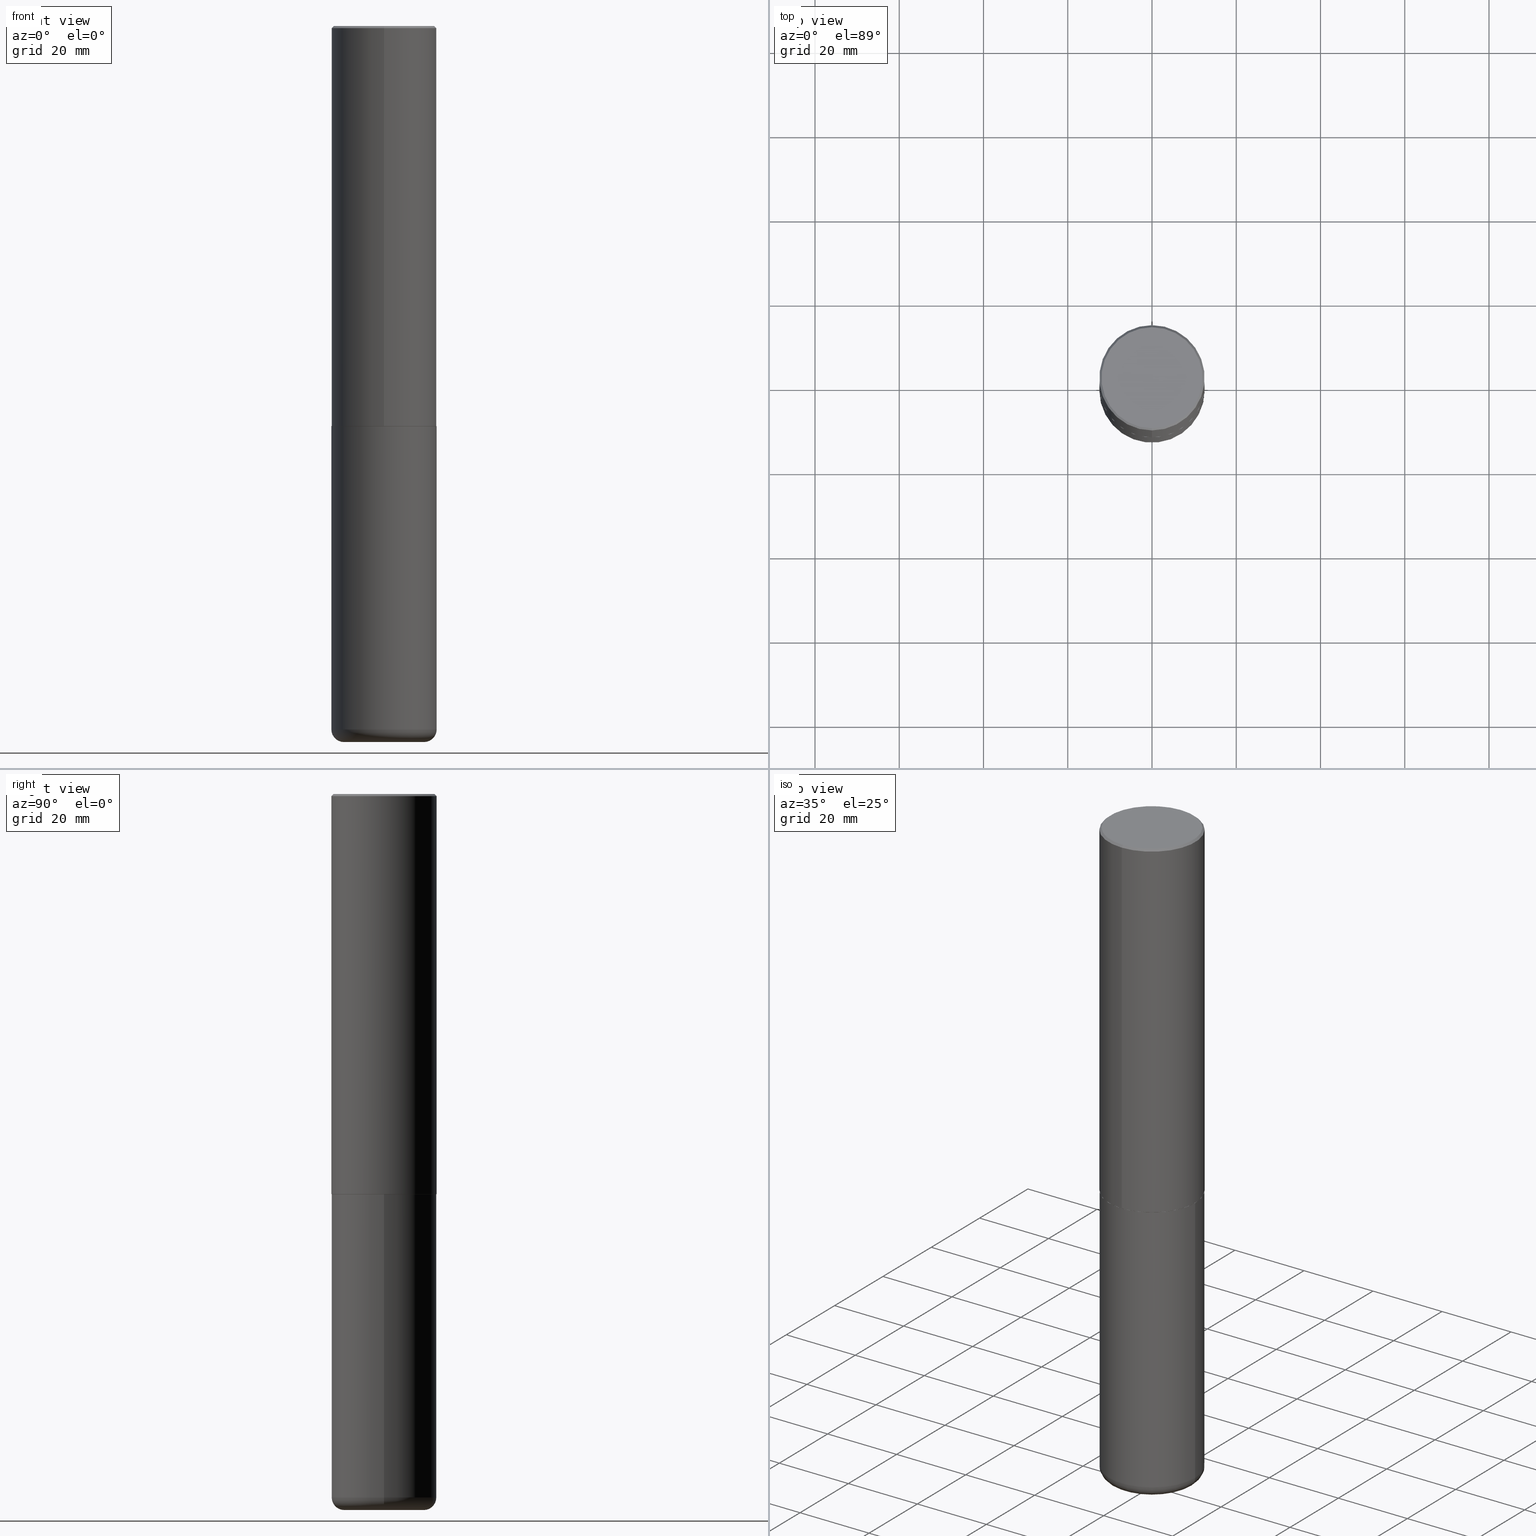
[diagram: canonical four-view strip — front | top / right | iso, engineering-drawing reading convention]
A machine part, canonical four-view strip (front | top / right | iso — engineering-drawing reading convention). The complete STEP part file that produces these views, byte-faithful:
ISO-10303-21;
HEADER;
FILE_DESCRIPTION (( 'STEP AP203' ),
    '1' );
FILE_NAME ('47626.STEP',
    '2024-03-06T19:43:30',
    ( '' ),
    ( '' ),
    'SwSTEP 2.0',
    'SolidWorks 2023',
    '' );
FILE_SCHEMA (( 'CONFIG_CONTROL_DESIGN' ));
ENDSEC;

DATA;
#1 = DIRECTION ( 'NONE',  ( -6.982962677686265922E-15, -1.000000000000000000, 3.490754157143982946E-15 ) ) ;
#2 = DIRECTION ( 'NONE',  ( -2.445976594451651952E-29, 3.490754157143982552E-15, 1.000000000000000000 ) ) ;
#3 = PRODUCT_DEFINITION_FORMATION_WITH_SPECIFIED_SOURCE ( 'ANY', '', #280, .NOT_KNOWN. ) ;
#4 = DIRECTION ( 'NONE',  ( 2.445976594451651392E-29, -3.490754157143982552E-15, -1.000000000000000000 ) ) ;
#5 = ORIENTED_EDGE ( 'NONE', *, *, #337, .T. ) ;
#6 = ADVANCED_FACE ( 'NONE', ( #199 ), #52, .T. ) ;
#7 = DIRECTION ( 'NONE',  ( -2.445468806185136597E-29, 3.491481338843145583E-15, 1.000000000000000000 ) ) ;
#8 = VECTOR ( 'NONE', #300, 39.37007874015748143 ) ;
#9 = VERTEX_POINT ( 'NONE', #45 ) ;
#10 = ORIENTED_EDGE ( 'NONE', *, *, #383, .T. ) ;
#11 = LINE ( 'NONE', #326, #8 ) ;
#12 = VERTEX_POINT ( 'NONE', #20 ) ;
#13 = AXIS2_PLACEMENT_3D ( 'NONE', #342, #186, #48 ) ;
#14 = FACE_OUTER_BOUND ( 'NONE', #245, .T. ) ;
#15 = EDGE_CURVE ( 'NONE', #41, #369, #289, .T. ) ;
#16 = ORIENTED_EDGE ( 'NONE', *, *, #142, .T. ) ;
#17 = DIRECTION ( 'NONE',  ( -2.445976594451651952E-29, 3.490754157143982552E-15, 1.000000000000000000 ) ) ;
#18 = ORIENTED_EDGE ( 'NONE', *, *, #411, .F. ) ;
#19 = PERSON_AND_ORGANIZATION_ROLE ( 'creator' ) ;
#20 = CARTESIAN_POINT ( 'NONE',  ( -0.4921499999999999764, -1.945885543258258157E-14, -6.574799999999999756 ) ) ;
#21 = LOCAL_TIME ( 14, 43, 30.00000000000000000, #206 ) ;
#22 = PERSON_AND_ORGANIZATION ( #110, #373 ) ;
#23 = CYLINDRICAL_SURFACE ( 'NONE', #234, 0.4921499999999999764 ) ;
#24 = ADVANCED_FACE ( 'NONE', ( #176 ), #23, .T. ) ;
#25 = CARTESIAN_POINT ( 'NONE',  ( -0.4921499999999999764, -1.451020435697325173E-14, -3.740100000000000424 ) ) ;
#26 = APPROVAL_STATUS ( 'not_yet_approved' ) ;
#27 = DIRECTION ( 'NONE',  ( -2.445976594451651952E-29, 3.490754157143982552E-15, 1.000000000000000000 ) ) ;
#28 = TOROIDAL_SURFACE ( 'NONE', #75, 0.3740499999999999381, 0.1181000000000000660 ) ;
#29 = CC_DESIGN_APPROVAL ( #116, ( #3 ) ) ;
#30 = EDGE_CURVE ( 'NONE', #40, #282, #46, .T. ) ;
#31 = CARTESIAN_POINT ( 'NONE',  ( -5.420756467185317189E-45, 7.736185299407739239E-31, 2.216193106459615290E-16 ) ) ;
#32 = CARTESIAN_POINT ( 'NONE',  ( -3.429682119145517860E-15, -0.4911500000000130206, -3.740099999999998204 ) ) ;
#33 = CARTESIAN_POINT ( 'NONE',  ( 4.891953188903329688E-31, -6.981508314288001687E-17, -0.02000000000000010797 ) ) ;
#34 = CARTESIAN_POINT ( 'NONE',  ( 9.148197060908621523E-29, -1.305576962313420868E-14, -3.740099999999999980 ) ) ;
#35 = AXIS2_PLACEMENT_3D ( 'NONE', #228, #7, #361 ) ;
#36 = ADVANCED_FACE ( 'NONE', ( #151 ), #28, .T. ) ;
#37 = CARTESIAN_POINT ( 'NONE',  ( 4.891953188903329688E-31, -6.981508314288001687E-17, -0.02000000000000010797 ) ) ;
#38 = CALENDAR_DATE ( 2024, 6, 3 ) ;
#39 = ADVANCED_FACE ( 'NONE', ( #382 ), #152, .T. ) ;
#40 = VERTEX_POINT ( 'NONE', #251 ) ;
#41 = VERTEX_POINT ( 'NONE', #25 ) ;
#42 = DIRECTION ( 'NONE',  ( -6.982962677686265922E-15, -1.000000000000000000, 3.330506545156063496E-15 ) ) ;
#43 = EDGE_LOOP ( 'NONE', ( #375, #163 ) ) ;
#44 = CARTESIAN_POINT ( 'NONE',  ( 1.607846830690603466E-28, -2.295579150662591525E-14, -6.574799999999999756 ) ) ;
#45 = CARTESIAN_POINT ( 'NONE',  ( 3.436665081823295777E-15, 0.4921499999999998098, -0.02000000000000182188 ) ) ;
#46 = CIRCLE ( 'NONE', #305, 0.3740499999999999381 ) ;
#47 = APPROVAL_PERSON_ORGANIZATION ( #249, #285, #376 ) ;
#48 = DIRECTION ( 'NONE',  ( -1.000000000000000000, 6.982962677686265922E-15, -4.876176775795935793E-29 ) ) ;
#49 = PERSON_AND_ORGANIZATION_ROLE ( 'classification_officer' ) ;
#50 = ORIENTED_EDGE ( 'NONE', *, *, #301, .T. ) ;
#51 = DATE_TIME_ROLE ( 'creation_date' ) ;
#52 = CYLINDRICAL_SURFACE ( 'NONE', #84, 0.4921500000000000874 ) ;
#53 = EDGE_CURVE ( 'NONE', #263, #99, #257, .T. ) ;
#54 = CARTESIAN_POINT ( 'NONE',  ( 0.000000000000000000, 0.000000000000000000, 0.000000000000000000 ) ) ;
#55 = SECURITY_CLASSIFICATION ( '', '', #117 ) ;
#56 = CALENDAR_DATE ( 2024, 6, 3 ) ;
#57 = CARTESIAN_POINT ( 'NONE',  ( 3.496936074043333291E-15, 0.4921500000000000874, -1.717974658438411319E-15 ) ) ;
#58 = CALENDAR_DATE ( 2024, 6, 3 ) ;
#59 = CARTESIAN_POINT ( 'NONE',  ( 0.4921499999999999764, -3.436665081823295777E-15, 2.399810400207969603E-29 ) ) ;
#60 = FACE_OUTER_BOUND ( 'NONE', #43, .T. ) ;
#61 = AXIS2_PLACEMENT_3D ( 'NONE', #330, #157, #42 ) ;
#62 = CARTESIAN_POINT ( 'NONE',  ( 1.636727817291649966E-28, -2.336813545274328780E-14, -6.692899999999999849 ) ) ;
#63 = CARTESIAN_POINT ( 'NONE',  ( 1.607846830690603466E-28, -2.295579150662591525E-14, -6.574799999999999756 ) ) ;
#64 = EDGE_LOOP ( 'NONE', ( #5, #362, #77, #302 ) ) ;
#65 = DIRECTION ( 'NONE',  ( 2.445976594451651952E-29, -3.490754157143982552E-15, -1.000000000000000000 ) ) ;
#66 = CIRCLE ( 'NONE', #391, 0.4721499999999996255 ) ;
#67 = CARTESIAN_POINT ( 'NONE',  ( 3.493383360364624690E-15, 0.4911499999999869304, -3.740100000000001312 ) ) ;
#68 = CIRCLE ( 'NONE', #161, 0.3740499999999999381 ) ;
#69 = VERTEX_POINT ( 'NONE', #182 ) ;
#70 = DIRECTION ( 'NONE',  ( -2.445468806185136597E-29, 3.491481338843145583E-15, 1.000000000000000000 ) ) ;
#71 = ORIENTED_EDGE ( 'NONE', *, *, #195, .T. ) ;
#72 = ADVANCED_FACE ( 'NONE', ( #384 ), #252, .T. ) ;
#73 = ORIENTED_EDGE ( 'NONE', *, *, #268, .T. ) ;
#74 = DIRECTION ( 'NONE',  ( 1.000000000000000000, 0.000000000000000000, 0.000000000000000000 ) ) ;
#75 = AXIS2_PLACEMENT_3D ( 'NONE', #63, #218, #179 ) ;
#76 = APPLICATION_PROTOCOL_DEFINITION ( 'international standard', 'config_control_design', 1994, #164 ) ;
#77 = ORIENTED_EDGE ( 'NONE', *, *, #371, .F. ) ;
#78 = DIRECTION ( 'NONE',  ( 1.000000000000000000, -6.982962677686266711E-15, 4.883557194083112340E-29 ) ) ;
#79 = DIRECTION ( 'NONE',  ( -2.445468806185136597E-29, 3.491481338843145583E-15, 1.000000000000000000 ) ) ;
#80 = ORIENTED_EDGE ( 'NONE', *, *, #30, .T. ) ;
#81 = ADVANCED_FACE ( 'NONE', ( #381 ), #119, .T. ) ;
#82 = CARTESIAN_POINT ( 'NONE',  ( -0.4921499999999999764, 3.496936074043332897E-15, -2.420853904668951509E-29 ) ) ;
#83 = EDGE_LOOP ( 'NONE', ( #18, #80, #16, #158 ) ) ;
#84 = AXIS2_PLACEMENT_3D ( 'NONE', #54, #247, #312 ) ;
#85 = APPROVAL_PERSON_ORGANIZATION ( #275, #254, #241 ) ;
#86 = ORIENTED_EDGE ( 'NONE', *, *, #261, .T. ) ;
#87 = EDGE_CURVE ( 'NONE', #167, #369, #380, .T. ) ;
#88 = CALENDAR_DATE ( 2024, 6, 3 ) ;
#89 = CIRCLE ( 'NONE', #354, 0.4921500000000000319 ) ;
#90 = DIRECTION ( 'NONE',  ( -4.851104656540955597E-15, -0.7071067811865487940, -0.7071067811865461294 ) ) ;
#91 = ADVANCED_FACE ( 'NONE', ( #92 ), #212, .F. ) ;
#92 = FACE_OUTER_BOUND ( 'NONE', #359, .T. ) ;
#93 = CARTESIAN_POINT ( 'NONE',  ( 3.366835455046432084E-15, 0.4721499999999996255, -1.426540264649568516E-15 ) ) ;
#94 = DIRECTION ( 'NONE',  ( 6.982962677686265922E-15, 1.000000000000000000, -3.486624039460257331E-15 ) ) ;
#95 = DIRECTION ( 'NONE',  ( 1.000000000000000000, -6.982962677686265133E-15, 0.000000000000000000 ) ) ;
#96 = DIRECTION ( 'NONE',  ( -6.982962677686265922E-15, -1.000000000000000000, 3.337287582609300506E-15 ) ) ;
#97 = CC_DESIGN_SECURITY_CLASSIFICATION ( #55, ( #3 ) ) ;
#98 = CARTESIAN_POINT ( 'NONE',  ( 4.891953188903329688E-31, -6.981508314288001687E-17, -0.02000000000000010797 ) ) ;
#99 = VERTEX_POINT ( 'NONE', #255 ) ;
#100 = PRODUCT_DEFINITION ( 'UNKNOWN', '', #3, #270 ) ;
#101 = EDGE_LOOP ( 'NONE', ( #316, #207, #174, #279 ) ) ;
#102 = LENGTH_MEASURE_WITH_UNIT ( LENGTH_MEASURE( 0.02539999999999999897 ), #198 );
#103 = CARTESIAN_POINT ( 'NONE',  ( 9.148197060908621523E-29, -1.305576962313420868E-14, -3.740099999999999980 ) ) ;
#104 =( NAMED_UNIT ( * ) SI_UNIT ( $, .STERADIAN. ) SOLID_ANGLE_UNIT ( ) );
#105 = ORIENTED_EDGE ( 'NONE', *, *, #210, .F. ) ;
#106 = FACE_OUTER_BOUND ( 'NONE', #393, .T. ) ;
#107 = PRODUCT_RELATED_PRODUCT_CATEGORY ( 'detail', '', ( #280 ) ) ;
#108 = APPROVAL_STATUS ( 'not_yet_approved' ) ;
#109 = ORIENTED_EDGE ( 'NONE', *, *, #15, .F. ) ;
#110 = PERSON ( 'UNSPECIFIED', 'UNSPECIFIED', 'UNSPECIFIED', ('UNSPECIFIED'), ('UNSPECIFIED'), ('UNSPECIFIED') ) ;
#111 = PERSON_AND_ORGANIZATION ( #110, #373 ) ;
#112 = EDGE_LOOP ( 'NONE', ( #162, #400, #239, #304 ) ) ;
#113 = VECTOR ( 'NONE', #398, 39.37007874015748143 ) ;
#114 = ADVANCED_FACE ( 'NONE', ( #181 ), #334, .T. ) ;
#115 = ORIENTED_EDGE ( 'NONE', *, *, #301, .F. ) ;
#116 = APPROVAL ( #278, 'UNSPECIFIED' ) ;
#117 = SECURITY_CLASSIFICATION_LEVEL ( 'unclassified' ) ;
#118 = DIRECTION ( 'NONE',  ( 1.000000000000000000, -6.982962677686265922E-15, 4.876176775795935793E-29 ) ) ;
#119 = CONICAL_SURFACE ( 'NONE', #372, 0.4911499999999999755, 0.7853981633980288146 ) ;
#120 = VECTOR ( 'NONE', #237, 39.37007874015748143 ) ;
#121 = PLANE ( 'NONE',  #187 ) ;
#122 = DIRECTION ( 'NONE',  ( -6.982962677686265922E-15, -1.000000000000000000, 3.490754157143982552E-15 ) ) ;
#123 = DIRECTION ( 'NONE',  ( -2.445976594451651952E-29, 3.490754157143982552E-15, 1.000000000000000000 ) ) ;
#124 = AXIS2_PLACEMENT_3D ( 'NONE', #33, #123, #153 ) ;
#125 = APPLICATION_CONTEXT ( 'configuration controlled 3d designs of mechanical parts and assemblies' ) ;
#126 = CIRCLE ( 'NONE', #61, 0.4921500000000003650 ) ;
#127 = CARTESIAN_POINT ( 'NONE',  ( 0.3740499999999999381, -2.556776869621446119E-14, -6.574799999999999756 ) ) ;
#128 = DIRECTION ( 'NONE',  ( -6.982962677686265922E-15, -1.000000000000000000, 3.490754157143982946E-15 ) ) ;
#129 = VERTEX_POINT ( 'NONE', #93 ) ;
#130 = CARTESIAN_POINT ( 'NONE',  ( 0.3740499999999999381, -2.598011264233183690E-14, -6.692899999999999849 ) ) ;
#131 = VECTOR ( 'NONE', #240, 39.37007874015748143 ) ;
#132 = PERSON_AND_ORGANIZATION ( #110, #373 ) ;
#133 = EDGE_LOOP ( 'NONE', ( #205, #336, #408, #331 ) ) ;
#134 = DIRECTION ( 'NONE',  ( -2.445468806185136597E-29, 3.491481338843145583E-15, 1.000000000000000000 ) ) ;
#135 = DIRECTION ( 'NONE',  ( 1.000000000000000000, -6.982962677686265922E-15, 0.000000000000000000 ) ) ;
#136 = CONICAL_SURFACE ( 'NONE', #379, 0.4921499999999999209, 0.7853981633974467247 ) ;
#137 = DIRECTION ( 'NONE',  ( 1.000000000000000000, -6.982962677686265922E-15, 0.000000000000000000 ) ) ;
#138 = CARTESIAN_POINT ( 'NONE',  ( 3.297005828269567997E-15, 0.4721499999999996255, -1.537349919972549256E-15 ) ) ;
#139 = PERSON_AND_ORGANIZATION ( #110, #373 ) ;
#140 = ORIENTED_EDGE ( 'NONE', *, *, #261, .F. ) ;
#141 = CARTESIAN_POINT ( 'NONE',  ( 0.000000000000000000, 0.000000000000000000, 0.000000000000000000 ) ) ;
#142 = EDGE_CURVE ( 'NONE', #282, #167, #340, .T. ) ;
#143 = CARTESIAN_POINT ( 'NONE',  ( 9.146297882013029477E-29, -1.305848935540725085E-14, -3.740100000000000424 ) ) ;
#144 = AXIS2_PLACEMENT_3D ( 'NONE', #217, #320, #94 ) ;
#145 = CC_DESIGN_DATE_AND_TIME_ASSIGNMENT ( #404, #51, ( #100 ) ) ;
#146 = CARTESIAN_POINT ( 'NONE',  ( 0.000000000000000000, 0.000000000000000000, 0.000000000000000000 ) ) ;
#147 = LINE ( 'NONE', #324, #220 ) ;
#148 = ADVANCED_FACE ( 'NONE', ( #60 ), #121, .T. ) ;
#149 = DIRECTION ( 'NONE',  ( -6.982962677686265922E-15, -1.000000000000000000, 3.337287582609300506E-15 ) ) ;
#150 = AXIS2_PLACEMENT_3D ( 'NONE', #143, #377, #137 ) ;
#151 = FACE_OUTER_BOUND ( 'NONE', #83, .T. ) ;
#152 = CYLINDRICAL_SURFACE ( 'NONE', #177, 0.4921500000000000874 ) ;
#153 = DIRECTION ( 'NONE',  ( -6.982962677686265922E-15, -1.000000000000000000, 3.486624039460257331E-15 ) ) ;
#154 = CIRCLE ( 'NONE', #397, 0.4921499999999999764 ) ;
#155 = DIRECTION ( 'NONE',  ( -2.445976594451651952E-29, 3.490754157143982552E-15, 1.000000000000000000 ) ) ;
#156 = EDGE_CURVE ( 'NONE', #69, #9, #253, .T. ) ;
#157 = DIRECTION ( 'NONE',  ( -2.445976594451651952E-29, 3.490754157143982552E-15, 1.000000000000000000 ) ) ;
#158 = ORIENTED_EDGE ( 'NONE', *, *, #248, .F. ) ;
#159 = APPROVAL_DATE_TIME ( #194, #254 ) ;
#160 = AXIS2_PLACEMENT_3D ( 'NONE', #323, #2, #291 ) ;
#161 = AXIS2_PLACEMENT_3D ( 'NONE', #197, #277, #368 ) ;
#162 = ORIENTED_EDGE ( 'NONE', *, *, #156, .F. ) ;
#163 = ORIENTED_EDGE ( 'NONE', *, *, #30, .F. ) ;
#164 = APPLICATION_CONTEXT ( 'configuration controlled 3d designs of mechanical parts and assemblies' ) ;
#165 = CARTESIAN_POINT ( 'NONE',  ( -3.436665081823296565E-15, -0.4921500000000000874, 1.717974658438411319E-15 ) ) ;
#166 = APPLICATION_PROTOCOL_DEFINITION ( 'international standard', 'config_control_design', 1994, #125 ) ;
#167 = VERTEX_POINT ( 'NONE', #222 ) ;
#168 = CARTESIAN_POINT ( 'NONE',  ( 3.489830646685823002E-15, 0.4911499999999869304, -3.740100000000001312 ) ) ;
#169 = AXIS2_PLACEMENT_3D ( 'NONE', #347, #417, #353 ) ;
#170 = LOCAL_TIME ( 14, 43, 30.00000000000000000, #216 ) ;
#171 = AXIS2_PLACEMENT_3D ( 'NONE', #224, #17, #128 ) ;
#172 = ORIENTED_EDGE ( 'NONE', *, *, #306, .F. ) ;
#173 = LINE ( 'NONE', #82, #113 ) ;
#174 = ORIENTED_EDGE ( 'NONE', *, *, #238, .F. ) ;
#175 = EDGE_LOOP ( 'NONE', ( #396, #345, #115, #325 ) ) ;
#176 = FACE_OUTER_BOUND ( 'NONE', #269, .T. ) ;
#177 = AXIS2_PLACEMENT_3D ( 'NONE', #351, #295, #122 ) ;
#178 = AXIS2_PLACEMENT_3D ( 'NONE', #365, #134, #78 ) ;
#179 = DIRECTION ( 'NONE',  ( 1.000000000000000000, -6.982962677686266711E-15, 4.883557194083112340E-29 ) ) ;
#180 = DATE_AND_TIME ( #58, #21 ) ;
#181 = FACE_OUTER_BOUND ( 'NONE', #190, .T. ) ;
#182 = CARTESIAN_POINT ( 'NONE',  ( 3.496936074043380229E-15, 0.4921499999999873198, -3.739100000000002311 ) ) ;
#183 = AXIS2_PLACEMENT_3D ( 'NONE', #127, #294, #260 ) ;
#184 = DIRECTION ( 'NONE',  ( -2.445976594451651952E-29, 3.490754157143982552E-15, 1.000000000000000000 ) ) ;
#185 = DIRECTION ( 'NONE',  ( -1.000000000000000000, 6.982962677686265922E-15, -4.876176775795935793E-29 ) ) ;
#186 = DIRECTION ( 'NONE',  ( 2.438088387897960049E-29, -3.491481338843145188E-15, -1.000000000000000000 ) ) ;
#187 = AXIS2_PLACEMENT_3D ( 'NONE', #62, #413, #185 ) ;
#188 = AXIS2_PLACEMENT_3D ( 'NONE', #138, #4, #273 ) ;
#189 = CARTESIAN_POINT ( 'NONE',  ( -0.3740499999999999381, -2.029800640351526055E-14, -6.574799999999999756 ) ) ;
#190 = EDGE_LOOP ( 'NONE', ( #352, #105, #86, #10 ) ) ;
#191 = DIRECTION ( 'NONE',  ( -1.000000000000000000, 7.105427357601001859E-15, 0.000000000000000000 ) ) ;
#192 = DIRECTION ( 'NONE',  ( 1.000000000000000000, -6.982962677686265922E-15, 4.876176775795935793E-29 ) ) ;
#193 = ORIENTED_EDGE ( 'NONE', *, *, #156, .T. ) ;
#194 = DATE_AND_TIME ( #38, #259 ) ;
#195 = EDGE_CURVE ( 'NONE', #233, #230, #147, .T. ) ;
#196 =( NAMED_UNIT ( * ) PLANE_ANGLE_UNIT ( ) SI_UNIT ( $, .RADIAN. ) );
#197 = CARTESIAN_POINT ( 'NONE',  ( 1.636727817291649966E-28, -2.336813545274328780E-14, -6.692899999999999849 ) ) ;
#198 =( LENGTH_UNIT ( ) NAMED_UNIT ( * ) SI_UNIT ( $, .METRE. ) );
#199 = FACE_OUTER_BOUND ( 'NONE', #276, .T. ) ;
#200 = EDGE_CURVE ( 'NONE', #69, #99, #414, .T. ) ;
#201 = PLANE ( 'NONE',  #13 ) ;
#202 = CIRCLE ( 'NONE', #124, 0.4921499999999999209 ) ;
#203 = AXIS2_PLACEMENT_3D ( 'NONE', #37, #307, #356 ) ;
#204 = SHAPE_DEFINITION_REPRESENTATION ( #214, #335 ) ;
#205 = ORIENTED_EDGE ( 'NONE', *, *, #232, .F. ) ;
#206 = COORDINATED_UNIVERSAL_TIME_OFFSET ( 5, 0, .BEHIND. ) ;
#207 = ORIENTED_EDGE ( 'NONE', *, *, #306, .T. ) ;
#208 = DATE_TIME_ROLE ( 'classification_date' ) ;
#209 = ORIENTED_EDGE ( 'NONE', *, *, #210, .T. ) ;
#210 = EDGE_CURVE ( 'NONE', #129, #233, #66, .T. ) ;
#211 = APPROVAL_DATE_TIME ( #319, #285 ) ;
#212 = PLANE ( 'NONE',  #169 ) ;
#213 = VECTOR ( 'NONE', #386, 39.37007874015748143 ) ;
#214 = PRODUCT_DEFINITION_SHAPE ( 'NONE', 'NONE',  #100 ) ;
#215 = CIRCLE ( 'NONE', #35, 0.4921500000000000319 ) ;
#216 = COORDINATED_UNIVERSAL_TIME_OFFSET ( 5, 0, .BEHIND. ) ;
#217 = CARTESIAN_POINT ( 'NONE',  ( 4.891953188903329688E-31, -6.981508314288001687E-17, -0.02000000000000010797 ) ) ;
#218 = DIRECTION ( 'NONE',  ( -2.445468806185136597E-29, 3.491481338843145583E-15, 1.000000000000000000 ) ) ;
#219 = DIRECTION ( 'NONE',  ( -6.982962677686265922E-15, -1.000000000000000000, 3.330506545156063496E-15 ) ) ;
#220 = VECTOR ( 'NONE', #90, 39.37007874015748854 ) ;
#221 = TOROIDAL_SURFACE ( 'NONE', #178, 0.3740499999999999381, 0.1181000000000000660 ) ;
#222 = CARTESIAN_POINT ( 'NONE',  ( 0.4921499999999999764, -2.639245658844920945E-14, -6.574799999999999756 ) ) ;
#223 = PLANE ( 'NONE',  #188 ) ;
#224 = CARTESIAN_POINT ( 'NONE',  ( -5.420756467185317189E-45, 7.736185299407739239E-31, 2.216193106459615290E-16 ) ) ;
#225 = EDGE_CURVE ( 'NONE', #230, #9, #202, .T. ) ;
#226 = CLOSED_SHELL ( 'NONE', ( #297, #418, #395, #24, #36, #148 ) ) ;
#227 =( GEOMETRIC_REPRESENTATION_CONTEXT ( 3 ) GLOBAL_UNCERTAINTY_ASSIGNED_CONTEXT ( ( #286 ) ) GLOBAL_UNIT_ASSIGNED_CONTEXT ( ( #236, #196, #104 ) ) REPRESENTATION_CONTEXT ( 'NONE', 'WORKASPACE' ) );
#228 = CARTESIAN_POINT ( 'NONE',  ( 1.607846830690603466E-28, -2.295579150662591525E-14, -6.574799999999999756 ) ) ;
#229 = CC_DESIGN_DATE_AND_TIME_ASSIGNMENT ( #180, #208, ( #55 ) ) ;
#230 = VERTEX_POINT ( 'NONE', #355 ) ;
#231 = PERSON_AND_ORGANIZATION_ROLE ( 'design_owner' ) ;
#232 = EDGE_CURVE ( 'NONE', #403, #69, #388, .T. ) ;
#233 = VERTEX_POINT ( 'NONE', #264 ) ;
#234 = AXIS2_PLACEMENT_3D ( 'NONE', #146, #284, #118 ) ;
#235 = CIRCLE ( 'NONE', #243, 0.4911499999999999755 ) ;
#236 =( CONVERSION_BASED_UNIT ( 'INCH', #102 ) LENGTH_UNIT ( ) NAMED_UNIT ( #266 ) );
#237 = DIRECTION ( 'NONE',  ( 5.024295867790978808E-15, 0.7071067811869604647, 0.7071067811861345698 ) ) ;
#238 = EDGE_CURVE ( 'NONE', #369, #41, #154, .T. ) ;
#239 = ORIENTED_EDGE ( 'NONE', *, *, #288, .T. ) ;
#240 = DIRECTION ( 'NONE',  ( -2.445976594451651672E-29, 3.490754157143982552E-15, 1.000000000000000000 ) ) ;
#241 = APPROVAL_ROLE ( '' ) ;
#242 = ORIENTED_EDGE ( 'NONE', *, *, #311, .F. ) ;
#243 = AXIS2_PLACEMENT_3D ( 'NONE', #103, #310, #390 ) ;
#244 = APPROVAL_ROLE ( '' ) ;
#245 = EDGE_LOOP ( 'NONE', ( #209, #73 ) ) ;
#246 = COORDINATED_UNIVERSAL_TIME_OFFSET ( 5, 0, .BEHIND. ) ;
#247 = DIRECTION ( 'NONE',  ( -2.445976594451651952E-29, 3.490754157143982552E-15, 1.000000000000000000 ) ) ;
#248 = EDGE_CURVE ( 'NONE', #12, #167, #215, .T. ) ;
#249 = PERSON_AND_ORGANIZATION ( #110, #373 ) ;
#250 = CARTESIAN_POINT ( 'NONE',  ( 1.636727817291649966E-28, -2.336813545274328780E-14, -6.692899999999999849 ) ) ;
#251 = CARTESIAN_POINT ( 'NONE',  ( -0.3740499999999999381, -2.008460289110760576E-14, -6.692899999999999849 ) ) ;
#252 = CONICAL_SURFACE ( 'NONE', #160, 0.4911499999999999755, 0.7853981633980288146 ) ;
#253 = LINE ( 'NONE', #57, #405 ) ;
#254 = APPROVAL ( #108, 'UNSPECIFIED' ) ;
#255 = CARTESIAN_POINT ( 'NONE',  ( -3.436665081823207030E-15, -0.4921500000000134101, -3.739099999999998758 ) ) ;
#256 = CC_DESIGN_PERSON_AND_ORGANIZATION_ASSIGNMENT ( #22, #19, ( #3 ) ) ;
#257 = LINE ( 'NONE', #32, #213 ) ;
#258 = MANIFOLD_SOLID_BREP ( 'Body-Move/Copy2[2]', #366 ) ;
#259 = LOCAL_TIME ( 14, 43, 30.00000000000000000, #332 ) ;
#260 = DIRECTION ( 'NONE',  ( 1.000000000000000000, -6.982962677686270655E-15, 0.000000000000000000 ) ) ;
#261 = EDGE_CURVE ( 'NONE', #129, #9, #11, .T. ) ;
#262 = FACE_OUTER_BOUND ( 'NONE', #101, .T. ) ;
#263 = VERTEX_POINT ( 'NONE', #271 ) ;
#264 = CARTESIAN_POINT ( 'NONE',  ( -3.307789109625541747E-15, -0.4721499999999996255, 1.869778885941491673E-15 ) ) ;
#265 = FACE_OUTER_BOUND ( 'NONE', #64, .T. ) ;
#266 = DIMENSIONAL_EXPONENTS ( 1.000000000000000000, 0.000000000000000000, 0.000000000000000000, 0.000000000000000000, 0.000000000000000000, 0.000000000000000000, 0.000000000000000000 ) ;
#267 = ORIENTED_EDGE ( 'NONE', *, *, #248, .T. ) ;
#268 = EDGE_CURVE ( 'NONE', #233, #129, #272, .T. ) ;
#269 = EDGE_LOOP ( 'NONE', ( #172, #267, #363, #109 ) ) ;
#270 = DESIGN_CONTEXT ( 'detailed design', #164, 'design' ) ;
#271 = CARTESIAN_POINT ( 'NONE',  ( -3.429682119145517860E-15, -0.4911500000000130206, -3.740099999999998204 ) ) ;
#272 = CIRCLE ( 'NONE', #171, 0.4721499999999996255 ) ;
#273 = DIRECTION ( 'NONE',  ( 6.982962677686265922E-15, 1.000000000000000000, -3.490754157143982552E-15 ) ) ;
#274 = CC_DESIGN_PERSON_AND_ORGANIZATION_ASSIGNMENT ( #407, #49, ( #55 ) ) ;
#275 = PERSON_AND_ORGANIZATION ( #110, #373 ) ;
#276 = EDGE_LOOP ( 'NONE', ( #50, #193, #394, #346 ) ) ;
#277 = DIRECTION ( 'NONE',  ( -2.445468806185136597E-29, 3.491481338843145583E-15, 1.000000000000000000 ) ) ;
#278 = APPROVAL_STATUS ( 'not_yet_approved' ) ;
#279 = ORIENTED_EDGE ( 'NONE', *, *, #87, .F. ) ;
#280 = PRODUCT ( '47626', '47626', '', ( #333 ) ) ;
#281 = AXIS2_PLACEMENT_3D ( 'NONE', #308, #364, #74 ) ;
#282 = VERTEX_POINT ( 'NONE', #130 ) ;
#283 = ADVANCED_FACE ( 'NONE', ( #106 ), #136, .T. ) ;
#284 = DIRECTION ( 'NONE',  ( -2.445468806185136597E-29, 3.491481338843145583E-15, 1.000000000000000000 ) ) ;
#285 = APPROVAL ( #26, 'UNSPECIFIED' ) ;
#286 = UNCERTAINTY_MEASURE_WITH_UNIT (LENGTH_MEASURE( 1.000000000000000082E-05 ), #236, 'distance_accuracy_value', 'NONE');
#287 = DIRECTION ( 'NONE',  ( -2.445976594451651952E-29, 3.490754157143982552E-15, 1.000000000000000000 ) ) ;
#288 = EDGE_CURVE ( 'NONE', #99, #230, #358, .T. ) ;
#289 = CIRCLE ( 'NONE', #150, 0.4921499999999999764 ) ;
#290 = APPROVAL_DATE_TIME ( #315, #116 ) ;
#291 = DIRECTION ( 'NONE',  ( -6.982962677686265922E-15, -1.000000000000000000, 3.337287582609300506E-15 ) ) ;
#292 = CC_DESIGN_APPROVAL ( #285, ( #55 ) ) ;
#293 = DIRECTION ( 'NONE',  ( -2.445468806185136877E-29, 3.491481338843145188E-15, 1.000000000000000000 ) ) ;
#294 = DIRECTION ( 'NONE',  ( -6.982962677686266711E-15, -1.000000000000000000, 3.491481338843145583E-15 ) ) ;
#295 = DIRECTION ( 'NONE',  ( -2.445976594451651952E-29, 3.490754157143982552E-15, 1.000000000000000000 ) ) ;
#296 = LOCAL_TIME ( 14, 43, 30.00000000000000000, #246 ) ;
#297 = ADVANCED_FACE ( 'NONE', ( #262 ), #328, .T. ) ;
#298 = DIRECTION ( 'NONE',  ( 6.982962677686265922E-15, 1.000000000000000000, -3.486624039460257331E-15 ) ) ;
#299 = ORIENTED_EDGE ( 'NONE', *, *, #238, .T. ) ;
#300 = DIRECTION ( 'NONE',  ( 4.937700262164540154E-15, 0.7071067811865440200, -0.7071067811865511255 ) ) ;
#301 = EDGE_CURVE ( 'NONE', #99, #69, #126, .T. ) ;
#302 = ORIENTED_EDGE ( 'NONE', *, *, #142, .F. ) ;
#303 = CARTESIAN_POINT ( 'NONE',  ( 9.146297882013029477E-29, -1.305848935540725085E-14, -3.740100000000000424 ) ) ;
#304 = ORIENTED_EDGE ( 'NONE', *, *, #383, .F. ) ;
#305 = AXIS2_PLACEMENT_3D ( 'NONE', #250, #378, #416 ) ;
#306 = EDGE_CURVE ( 'NONE', #12, #41, #173, .T. ) ;
#307 = DIRECTION ( 'NONE',  ( -2.445976594451651952E-29, 3.490754157143982552E-15, 1.000000000000000000 ) ) ;
#308 = CARTESIAN_POINT ( 'NONE',  ( 0.000000000000000000, 0.000000000000000000, 0.000000000000000000 ) ) ;
#309 = ORIENTED_EDGE ( 'NONE', *, *, #268, .F. ) ;
#310 = DIRECTION ( 'NONE',  ( -2.445976594451651952E-29, 3.490754157143982552E-15, 1.000000000000000000 ) ) ;
#311 = EDGE_CURVE ( 'NONE', #403, #263, #235, .T. ) ;
#312 = DIRECTION ( 'NONE',  ( -6.982962677686265922E-15, -1.000000000000000000, 3.490754157143982552E-15 ) ) ;
#313 = AXIS2_PLACEMENT_3D ( 'NONE', #349, #27, #219 ) ;
#314 = AXIS2_PLACEMENT_3D ( 'NONE', #141, #70, #192 ) ;
#315 = DATE_AND_TIME ( #317, #322 ) ;
#316 = ORIENTED_EDGE ( 'NONE', *, *, #371, .T. ) ;
#317 = CALENDAR_DATE ( 2024, 6, 3 ) ;
#318 = DIRECTION ( 'NONE',  ( -2.445976594451651672E-29, 3.490754157143982552E-15, 1.000000000000000000 ) ) ;
#319 = DATE_AND_TIME ( #88, #296 ) ;
#320 = DIRECTION ( 'NONE',  ( 2.445976594451651952E-29, -3.490754157143982552E-15, -1.000000000000000000 ) ) ;
#321 = CARTESIAN_POINT ( 'NONE',  ( 9.148197060908621523E-29, -1.305576962313420868E-14, -3.740099999999999980 ) ) ;
#322 = LOCAL_TIME ( 14, 43, 30.00000000000000000, #409 ) ;
#323 = CARTESIAN_POINT ( 'NONE',  ( 9.148197060908621523E-29, -1.305576962313420868E-14, -3.740099999999999980 ) ) ;
#324 = CARTESIAN_POINT ( 'NONE',  ( -3.376394089603257868E-15, -0.4921499999999999764, -0.01999999999999839059 ) ) ;
#325 = ORIENTED_EDGE ( 'NONE', *, *, #53, .F. ) ;
#326 = CARTESIAN_POINT ( 'NONE',  ( 3.436665081823295777E-15, 0.4921499999999998098, -0.02000000000000182188 ) ) ;
#327 = VECTOR ( 'NONE', #293, 39.37007874015748143 ) ;
#328 = CYLINDRICAL_SURFACE ( 'NONE', #314, 0.4921499999999999764 ) ;
#329 = CC_DESIGN_PERSON_AND_ORGANIZATION_ASSIGNMENT ( #139, #231, ( #280 ) ) ;
#330 = CARTESIAN_POINT ( 'NONE',  ( 9.145751084314172604E-29, -1.305227886897706845E-14, -3.739100000000000534 ) ) ;
#331 = ORIENTED_EDGE ( 'NONE', *, *, #200, .F. ) ;
#332 = COORDINATED_UNIVERSAL_TIME_OFFSET ( 5, 0, .BEHIND. ) ;
#333 = MECHANICAL_CONTEXT ( 'NONE', #125, 'mechanical' ) ;
#334 = CONICAL_SURFACE ( 'NONE', #144, 0.4921499999999999209, 0.7853981633974467247 ) ;
#335 = ADVANCED_BREP_SHAPE_REPRESENTATION ( '47626', ( #399, #258, #281 ), #227 ) ;
#336 = ORIENTED_EDGE ( 'NONE', *, *, #311, .T. ) ;
#337 = EDGE_CURVE ( 'NONE', #282, #40, #68, .T. ) ;
#338 = CARTESIAN_POINT ( 'NONE',  ( 0.4921499999999999764, -1.649515443723054663E-14, -3.740100000000000424 ) ) ;
#339 = ORIENTED_EDGE ( 'NONE', *, *, #402, .F. ) ;
#340 = CIRCLE ( 'NONE', #183, 0.1181000000000000383 ) ;
#341 = CIRCLE ( 'NONE', #203, 0.4921499999999999209 ) ;
#342 = CARTESIAN_POINT ( 'NONE',  ( 9.146297882013029477E-29, -1.305848935540725085E-14, -3.740100000000000424 ) ) ;
#343 = EDGE_LOOP ( 'NONE', ( #299, #389 ) ) ;
#344 = CC_DESIGN_PERSON_AND_ORGANIZATION_ASSIGNMENT ( #132, #348, ( #100 ) ) ;
#345 = ORIENTED_EDGE ( 'NONE', *, *, #232, .T. ) ;
#346 = ORIENTED_EDGE ( 'NONE', *, *, #288, .F. ) ;
#347 = CARTESIAN_POINT ( 'NONE',  ( 9.148197060908621523E-29, -1.305576962313420868E-14, -3.740099999999999980 ) ) ;
#348 = PERSON_AND_ORGANIZATION_ROLE ( 'creator' ) ;
#349 = CARTESIAN_POINT ( 'NONE',  ( 9.145751084314172604E-29, -1.305227886897706845E-14, -3.739100000000000534 ) ) ;
#350 = CC_DESIGN_PERSON_AND_ORGANIZATION_ASSIGNMENT ( #412, #374, ( #3 ) ) ;
#351 = CARTESIAN_POINT ( 'NONE',  ( 0.000000000000000000, 0.000000000000000000, 0.000000000000000000 ) ) ;
#352 = ORIENTED_EDGE ( 'NONE', *, *, #195, .F. ) ;
#353 = DIRECTION ( 'NONE',  ( -6.982962677686265922E-15, -1.000000000000000000, 3.490754157143982552E-15 ) ) ;
#354 = AXIS2_PLACEMENT_3D ( 'NONE', #44, #79, #95 ) ;
#355 = CARTESIAN_POINT ( 'NONE',  ( -3.376394089603257868E-15, -0.4921499999999999764, -0.01999999999999839059 ) ) ;
#356 = DIRECTION ( 'NONE',  ( -6.982962677686265922E-15, -1.000000000000000000, 3.486624039460257331E-15 ) ) ;
#357 = DIRECTION ( 'NONE',  ( 7.105427357601001859E-15, 1.000000000000000000, -3.491481338843145583E-15 ) ) ;
#358 = LINE ( 'NONE', #165, #131 ) ;
#359 = EDGE_LOOP ( 'NONE', ( #339, #242 ) ) ;
#360 = CC_DESIGN_APPROVAL ( #254, ( #100 ) ) ;
#361 = DIRECTION ( 'NONE',  ( 1.000000000000000000, -6.982962677686265133E-15, 0.000000000000000000 ) ) ;
#362 = ORIENTED_EDGE ( 'NONE', *, *, #411, .T. ) ;
#363 = ORIENTED_EDGE ( 'NONE', *, *, #87, .T. ) ;
#364 = DIRECTION ( 'NONE',  ( 0.000000000000000000, 0.000000000000000000, 1.000000000000000000 ) ) ;
#365 = CARTESIAN_POINT ( 'NONE',  ( 1.607846830690603466E-28, -2.295579150662591525E-14, -6.574799999999999756 ) ) ;
#366 = CLOSED_SHELL ( 'NONE', ( #81, #6, #283, #114, #39, #72, #91, #387 ) ) ;
#367 = CIRCLE ( 'NONE', #406, 0.4911499999999999755 ) ;
#368 = DIRECTION ( 'NONE',  ( 1.000000000000000000, -6.982962677686265133E-15, 0.000000000000000000 ) ) ;
#369 = VERTEX_POINT ( 'NONE', #338 ) ;
#370 = FACE_OUTER_BOUND ( 'NONE', #343, .T. ) ;
#371 = EDGE_CURVE ( 'NONE', #167, #12, #89, .T. ) ;
#372 = AXIS2_PLACEMENT_3D ( 'NONE', #321, #287, #149 ) ;
#373 = ORGANIZATION ( 'UNSPECIFIED', 'UNSPECIFIED', '' ) ;
#374 = PERSON_AND_ORGANIZATION_ROLE ( 'design_supplier' ) ;
#375 = ORIENTED_EDGE ( 'NONE', *, *, #337, .F. ) ;
#376 = APPROVAL_ROLE ( '' ) ;
#377 = DIRECTION ( 'NONE',  ( -2.445468806185136597E-29, 3.491481338843145583E-15, 1.000000000000000000 ) ) ;
#378 = DIRECTION ( 'NONE',  ( -2.445468806185136597E-29, 3.491481338843145583E-15, 1.000000000000000000 ) ) ;
#379 = AXIS2_PLACEMENT_3D ( 'NONE', #98, #65, #298 ) ;
#380 = LINE ( 'NONE', #59, #327 ) ;
#381 = FACE_OUTER_BOUND ( 'NONE', #175, .T. ) ;
#382 = FACE_OUTER_BOUND ( 'NONE', #112, .T. ) ;
#383 = EDGE_CURVE ( 'NONE', #9, #230, #341, .T. ) ;
#384 = FACE_OUTER_BOUND ( 'NONE', #133, .T. ) ;
#385 = CIRCLE ( 'NONE', #392, 0.1181000000000000383 ) ;
#386 = DIRECTION ( 'NONE',  ( -4.937700262167413974E-15, -0.7071067811869555797, 0.7071067811861394548 ) ) ;
#387 = ADVANCED_FACE ( 'NONE', ( #14 ), #223, .F. ) ;
#388 = LINE ( 'NONE', #168, #120 ) ;
#389 = ORIENTED_EDGE ( 'NONE', *, *, #15, .T. ) ;
#390 = DIRECTION ( 'NONE',  ( -6.982962677686265922E-15, -1.000000000000000000, 3.337287582609300506E-15 ) ) ;
#391 = AXIS2_PLACEMENT_3D ( 'NONE', #31, #184, #1 ) ;
#392 = AXIS2_PLACEMENT_3D ( 'NONE', #189, #357, #191 ) ;
#393 = EDGE_LOOP ( 'NONE', ( #309, #71, #410, #140 ) ) ;
#394 = ORIENTED_EDGE ( 'NONE', *, *, #225, .F. ) ;
#395 = ADVANCED_FACE ( 'NONE', ( #370 ), #201, .F. ) ;
#396 = ORIENTED_EDGE ( 'NONE', *, *, #402, .T. ) ;
#397 = AXIS2_PLACEMENT_3D ( 'NONE', #303, #401, #135 ) ;
#398 = DIRECTION ( 'NONE',  ( -2.445468806185136877E-29, 3.491481338843145188E-15, 1.000000000000000000 ) ) ;
#399 = MANIFOLD_SOLID_BREP ( 'Body-Move/Copy2[1]', #226 ) ;
#400 = ORIENTED_EDGE ( 'NONE', *, *, #200, .T. ) ;
#401 = DIRECTION ( 'NONE',  ( -2.445468806185136597E-29, 3.491481338843145583E-15, 1.000000000000000000 ) ) ;
#402 = EDGE_CURVE ( 'NONE', #263, #403, #367, .T. ) ;
#403 = VERTEX_POINT ( 'NONE', #67 ) ;
#404 = DATE_AND_TIME ( #56, #170 ) ;
#405 = VECTOR ( 'NONE', #318, 39.37007874015748143 ) ;
#406 = AXIS2_PLACEMENT_3D ( 'NONE', #34, #155, #96 ) ;
#407 = PERSON_AND_ORGANIZATION ( #110, #373 ) ;
#408 = ORIENTED_EDGE ( 'NONE', *, *, #53, .T. ) ;
#409 = COORDINATED_UNIVERSAL_TIME_OFFSET ( 5, 0, .BEHIND. ) ;
#410 = ORIENTED_EDGE ( 'NONE', *, *, #225, .T. ) ;
#411 = EDGE_CURVE ( 'NONE', #40, #12, #385, .T. ) ;
#412 = PERSON_AND_ORGANIZATION ( #110, #373 ) ;
#413 = DIRECTION ( 'NONE',  ( 2.438088387897960049E-29, -3.491481338843145188E-15, -1.000000000000000000 ) ) ;
#414 = CIRCLE ( 'NONE', #313, 0.4921500000000003650 ) ;
#415 = APPROVAL_PERSON_ORGANIZATION ( #111, #116, #244 ) ;
#416 = DIRECTION ( 'NONE',  ( 1.000000000000000000, -6.982962677686265133E-15, 0.000000000000000000 ) ) ;
#417 = DIRECTION ( 'NONE',  ( -2.445976594451651392E-29, 3.490754157143982552E-15, 1.000000000000000000 ) ) ;
#418 = ADVANCED_FACE ( 'NONE', ( #265 ), #221, .T. ) ;
ENDSEC;
END-ISO-10303-21;
